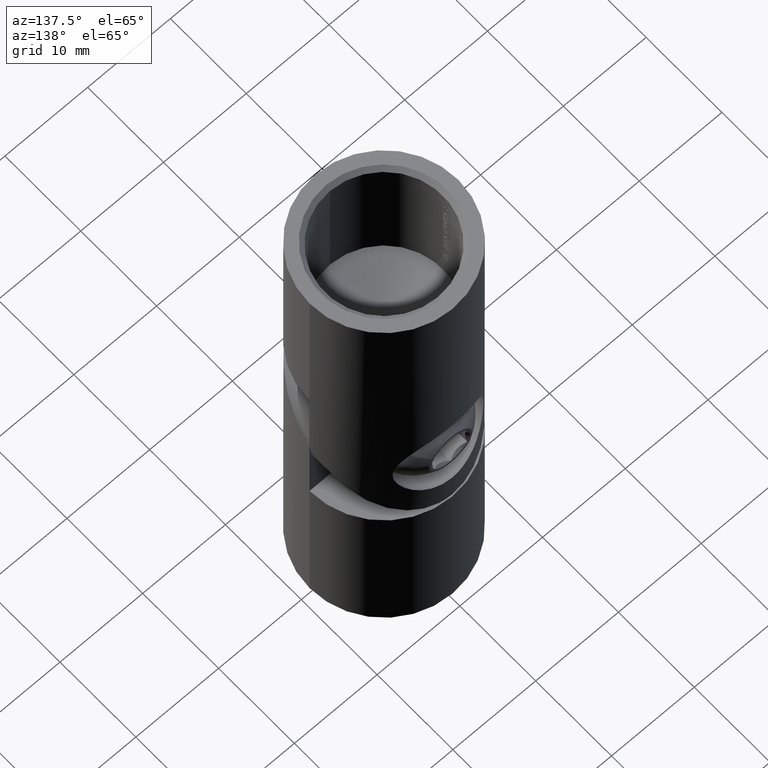
[diagram: clean part render]
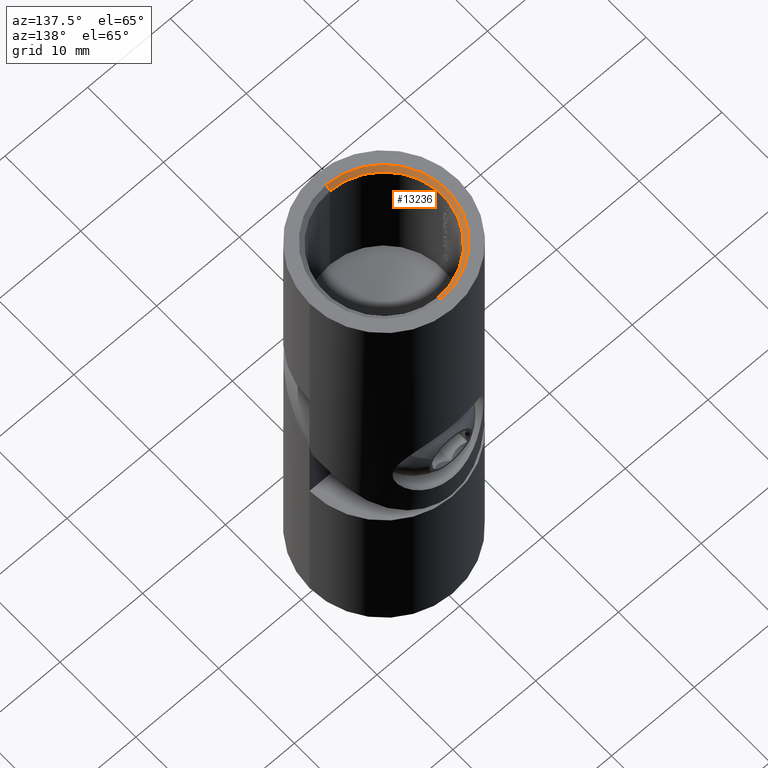
[diagram: same view with one face highlighted and labeled with its STEP entity id]
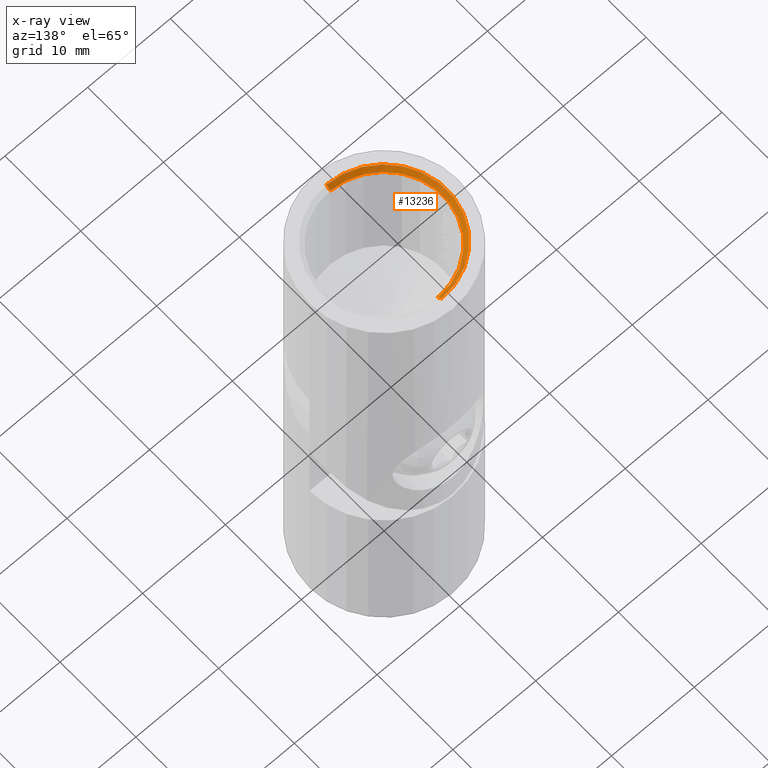
[diagram: x-ray of the same camera — body ghosted, the highlighted face saturated]
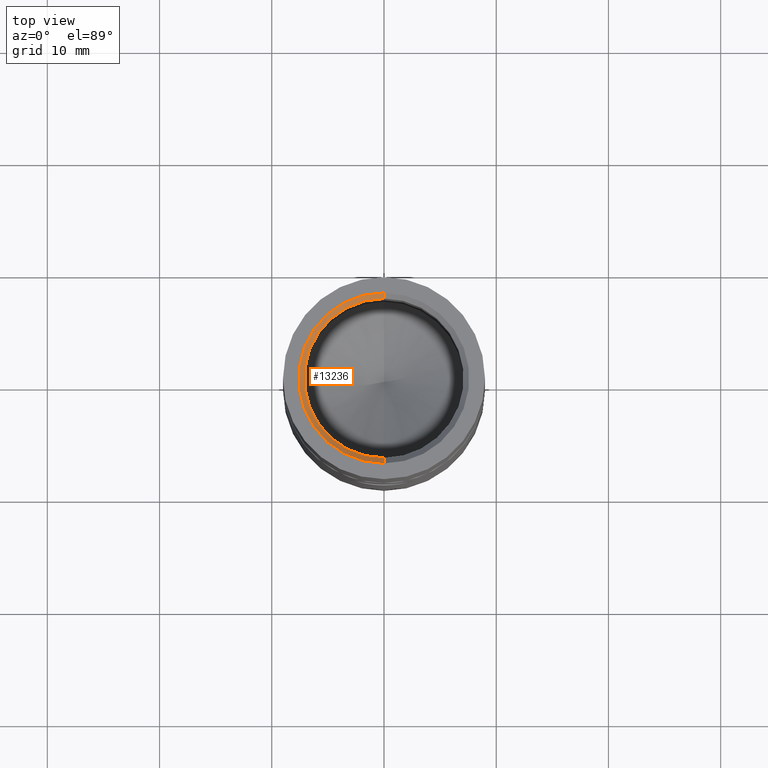
[diagram: same view with one face highlighted and labeled with its STEP entity id]
A machine part, auxiliary view. The second image highlights one B-rep face of the part: STEP entity #13236.
The next image is the same camera in x-ray: the body ghosted, the highlighted face saturated — about 0% of this face is hidden behind the body in this view.
A second angle (top view) of the same face is appended — the face is thin or edge-on in the first view.
In plain terms, the highlighted conical surface has half-angle 45 deg.
Its self-contained STEP definition (entity closure, byte-faithful):
#41 = ORIENTED_EDGE ( 'NONE', *, *, #6639, .F. ) ;
#559 = DIRECTION ( 'NONE',  ( 8.659560562354948882E-17, 0.7071067811865487940, 0.7071067811865463515 ) ) ;
#604 = CARTESIAN_POINT ( 'NONE',  ( 9.307315673519883487E-16, 7.599999999999998757, 20.50000000000000000 ) ) ;
#1477 = EDGE_CURVE ( 'NONE', #9308, #2806, #12260, .T. ) ;
#1936 = DIRECTION ( 'NONE',  ( 0.000000000000000000, -0.7071067811865487940, 0.7071067811865463515 ) ) ;
#2806 = VERTEX_POINT ( 'NONE', #7886 ) ;
#2977 = CONICAL_SURFACE ( 'NONE', #11521, 7.599999999999998757, 0.7853981633974500554 ) ;
#2981 = DIRECTION ( 'NONE',  ( 1.000000000000000000, 0.000000000000000000, 0.000000000000000000 ) ) ;
#3411 = ORIENTED_EDGE ( 'NONE', *, *, #7888, .F. ) ;
#3426 = CARTESIAN_POINT ( 'NONE',  ( 0.000000000000000000, 0.000000000000000000, 20.50000000000000000 ) ) ;
#3430 = CARTESIAN_POINT ( 'NONE',  ( 8.694992273946203802E-16, -7.099999999999996980, 20.00000000000000000 ) ) ;
#3618 = DIRECTION ( 'NONE',  ( -0.000000000000000000, -3.213806942889965105E-18, 1.000000000000000000 ) ) ;
#3993 = DIRECTION ( 'NONE',  ( -0.000000000000000000, -0.000000000000000000, -1.000000000000000000 ) ) ;
#4312 = ORIENTED_EDGE ( 'NONE', *, *, #5098, .F. ) ;
#4605 = EDGE_LOOP ( 'NONE', ( #3411, #11027, #41, #4312 ) ) ;
#5098 = EDGE_CURVE ( 'NONE', #5392, #11649, #11235, .T. ) ;
#5392 = VERTEX_POINT ( 'NONE', #3430 ) ;
#5468 = VECTOR ( 'NONE', #559, 1000.000000000000000 ) ;
#5807 = CIRCLE ( 'NONE', #11475, 7.099999999999996980 ) ;
#6639 = EDGE_CURVE ( 'NONE', #11649, #2806, #11210, .T. ) ;
#7122 = CARTESIAN_POINT ( 'NONE',  ( 0.000000000000000000, -7.599999999999998757, 20.50000000000000000 ) ) ;
#7186 = DIRECTION ( 'NONE',  ( -0.000000000000000000, -3.213806942889965105E-18, 1.000000000000000000 ) ) ;
#7886 = CARTESIAN_POINT ( 'NONE',  ( 9.307315673519883487E-16, 7.599999999999998757, 20.50000000000000000 ) ) ;
#7888 = EDGE_CURVE ( 'NONE', #9308, #5392, #5807, .T. ) ;
#7961 = CARTESIAN_POINT ( 'NONE',  ( 0.000000000000000000, 1.606903471444984093E-18, 20.00000000000000000 ) ) ;
#9134 = CARTESIAN_POINT ( 'NONE',  ( 0.000000000000000000, 1.518297594726657896E-34, 20.50000000000000000 ) ) ;
#9308 = VERTEX_POINT ( 'NONE', #9504 ) ;
#9504 = CARTESIAN_POINT ( 'NONE',  ( 0.000000000000000000, 7.099999999999996980, 20.00000000000000000 ) ) ;
#9524 = AXIS2_PLACEMENT_3D ( 'NONE', #9134, #3993, #2981 ) ;
#9572 = CARTESIAN_POINT ( 'NONE',  ( 0.000000000000000000, -7.599999999999998757, 20.50000000000000000 ) ) ;
#10877 = DIRECTION ( 'NONE',  ( 0.000000000000000000, -1.000000000000000000, 0.000000000000000000 ) ) ;
#11027 = ORIENTED_EDGE ( 'NONE', *, *, #1477, .T. ) ;
#11210 = CIRCLE ( 'NONE', #9524, 7.599999999999998757 ) ;
#11235 = LINE ( 'NONE', #7122, #11565 ) ;
#11388 = FACE_OUTER_BOUND ( 'NONE', #4605, .T. ) ;
#11475 = AXIS2_PLACEMENT_3D ( 'NONE', #7961, #7186, #12407 ) ;
#11521 = AXIS2_PLACEMENT_3D ( 'NONE', #3426, #3618, #10877 ) ;
#11565 = VECTOR ( 'NONE', #1936, 1000.000000000000000 ) ;
#11649 = VERTEX_POINT ( 'NONE', #9572 ) ;
#12260 = LINE ( 'NONE', #604, #5468 ) ;
#12407 = DIRECTION ( 'NONE',  ( 0.000000000000000000, -1.000000000000000000, 0.000000000000000000 ) ) ;
#13236 = ADVANCED_FACE ( 'NONE', ( #11388 ), #2977, .F. ) ;